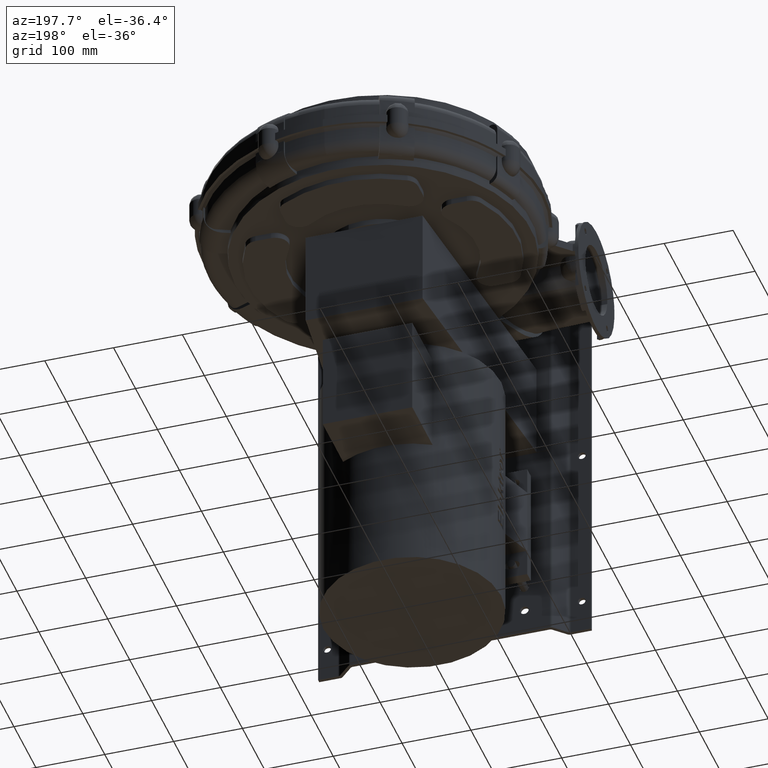
[diagram: clean part render]
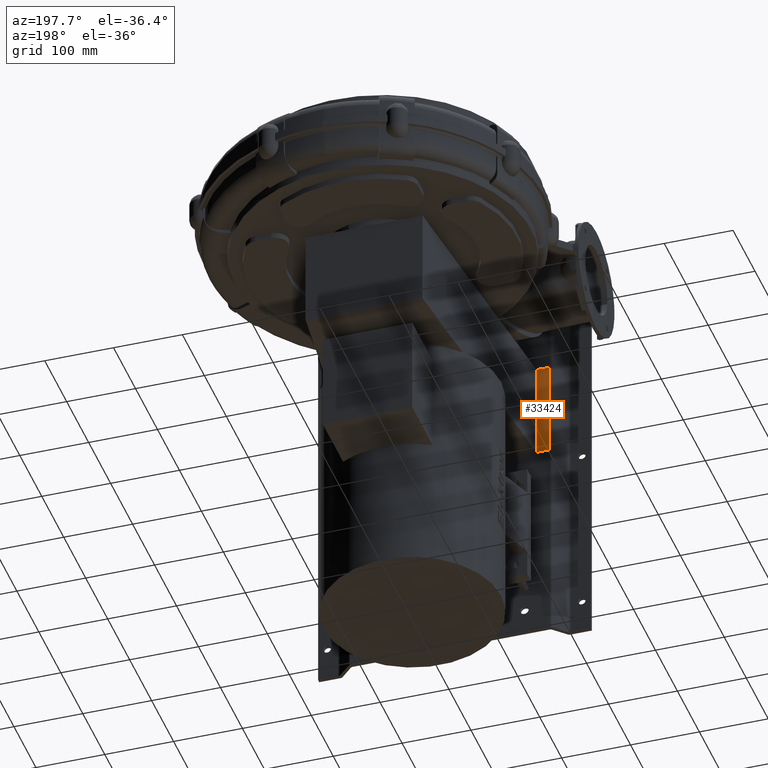
[diagram: same view with one face highlighted and labeled with its STEP entity id]
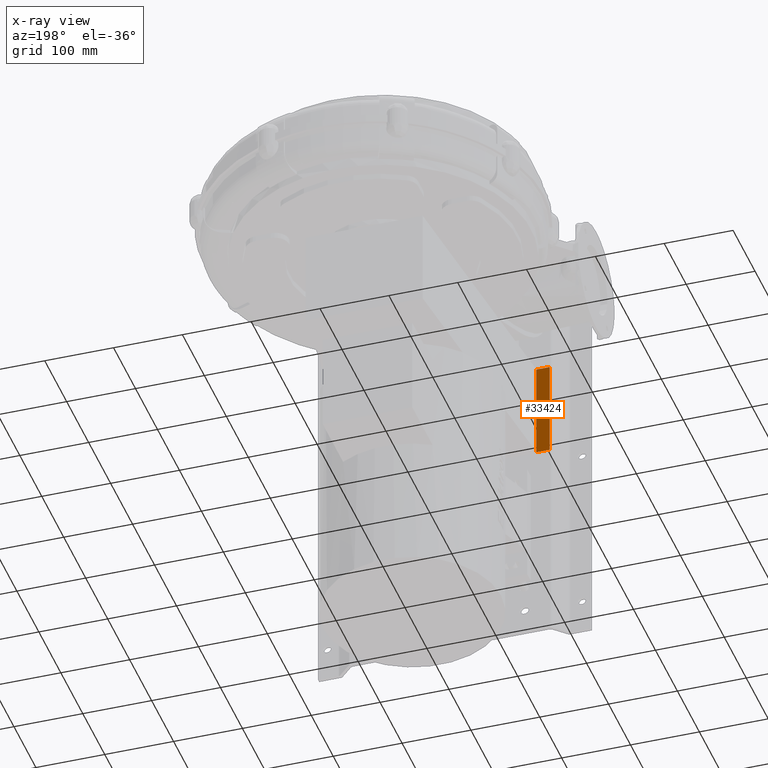
[diagram: x-ray of the same camera — body ghosted, the highlighted face saturated]
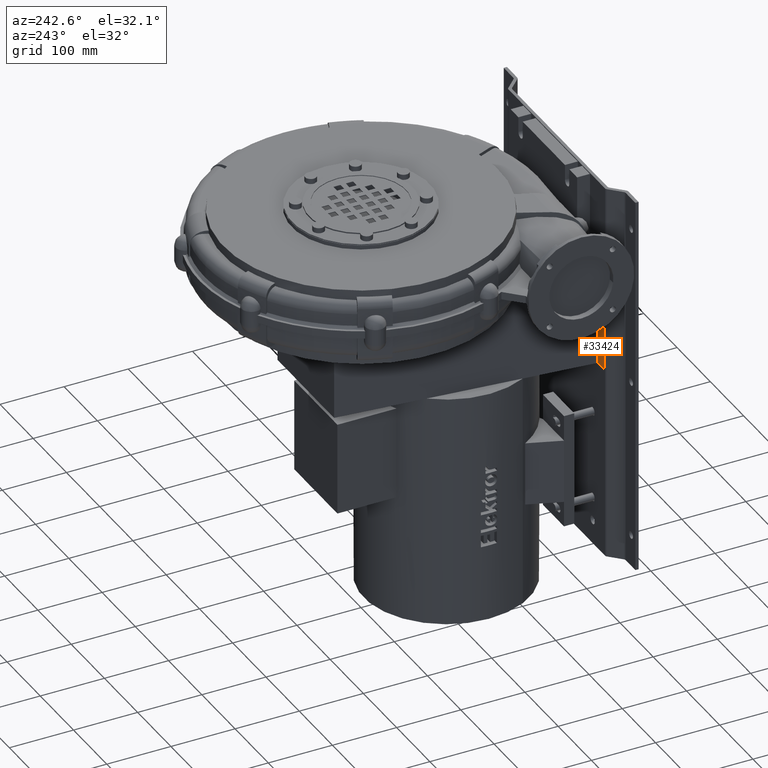
[diagram: same view with one face highlighted and labeled with its STEP entity id]
A machine part, auxiliary view. The second image highlights one B-rep face of the part: STEP entity #33424.
The next image is the same camera in x-ray: the body ghosted, the highlighted face saturated — about 0% of this face is hidden behind the body in this view.
A second angle (auxiliary view) of the same face is appended — the face is thin or edge-on in the first view.
In plain terms, the highlighted planar face has unit normal (0, 1, 0).
Its self-contained STEP definition (entity closure, byte-faithful):
#12349=CARTESIAN_POINT('',(-144.99999999999918,-304.00000000000074,-141.99999999999926));
#12350=VERTEX_POINT('',#12349);
#12357=CARTESIAN_POINT('',(-125.99999999999918,-304.00000000000074,-141.99999999999926));
#12358=VERTEX_POINT('',#12357);
#12359=CARTESIAN_POINT('',(-125.99999999999918,-304.00000000000074,-141.99999999999923));
#12360=DIRECTION('',(-1.0,0.0,0.0));
#12361=VECTOR('',#12360,19.0);
#12362=LINE('',#12359,#12361);
#12363=EDGE_CURVE('',#12358,#12350,#12362,.T.);
#31489=CARTESIAN_POINT('',(-125.99999999999935,-304.00000000000028,7.704640E-013));
#31490=VERTEX_POINT('',#31489);
#31497=CARTESIAN_POINT('',(-144.99999999999935,-304.00000000000028,7.484862E-013));
#31498=VERTEX_POINT('',#31497);
#31499=CARTESIAN_POINT('',(-144.99999999999935,-304.00000000000028,7.484862E-013));
#31500=DIRECTION('',(1.0,0.0,0.0));
#31501=VECTOR('',#31500,19.0);
#31502=LINE('',#31499,#31501);
#31503=EDGE_CURVE('',#31498,#31490,#31502,.T.);
#33392=CARTESIAN_POINT('',(-125.99999999999935,-304.00000000000028,7.704640E-013));
#33393=DIRECTION('',(0.0,0.0,-1.0));
#33394=VECTOR('',#33393,142.0);
#33395=LINE('',#33392,#33394);
#33396=EDGE_CURVE('',#31490,#12358,#33395,.T.);
#33408=CARTESIAN_POINT('',(-125.99999999999935,-304.00000000000028,7.704640E-013));
#33409=DIRECTION('',(0.0,1.0,0.0));
#33410=DIRECTION('',(0.0,0.0,1.0));
#33411=AXIS2_PLACEMENT_3D('',#33408,#33409,#33410);
#33412=PLANE('',#33411);
#33413=ORIENTED_EDGE('',*,*,#12363,.T.);
#33414=CARTESIAN_POINT('',(-144.99999999999935,-304.00000000000028,7.484862E-013));
#33415=DIRECTION('',(0.0,0.0,-1.0));
#33416=VECTOR('',#33415,142.0);
#33417=LINE('',#33414,#33416);
#33418=EDGE_CURVE('',#31498,#12350,#33417,.T.);
#33419=ORIENTED_EDGE('',*,*,#33418,.F.);
#33420=ORIENTED_EDGE('',*,*,#31503,.T.);
#33421=ORIENTED_EDGE('',*,*,#33396,.T.);
#33422=EDGE_LOOP('',(#33413,#33419,#33420,#33421));
#33423=FACE_OUTER_BOUND('',#33422,.T.);
#33424=ADVANCED_FACE('',(#33423),#33412,.T.);